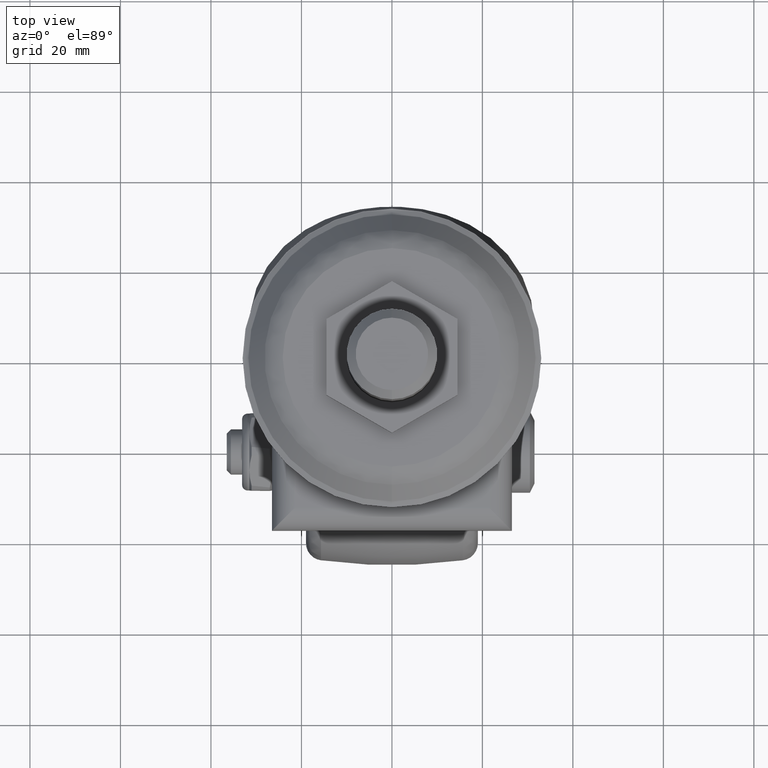
[diagram: clean part render]
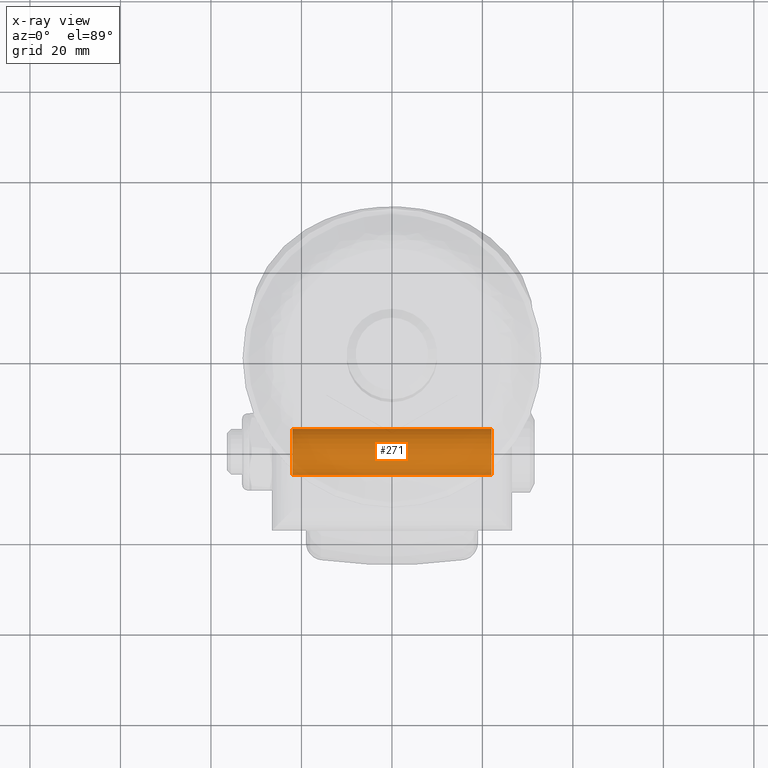
[diagram: x-ray — body ghosted, one internal face saturated and labeled with its STEP entity id]
A machine part, top view, then the same camera in x-ray: the body is ghosted and one INTERNAL B-rep face — a face not visible from any outside direction — is saturated and labeled: STEP entity #271.
In plain terms, the highlighted cylindrical surface (edge-blend (fillet) strip) has radius 5.1 mm, axis along (-1, 0, -0).
Its self-contained STEP definition (entity closure, byte-faithful):
#271=ADVANCED_FACE('',(#1898),#1897,.F.);
#1897=CYLINDRICAL_SURFACE('',#3601,5.10000000000E+00);
#1898=FACE_OUTER_BOUND('',#3602,.T.);
#3598=CARTESIAN_POINT('',(5.00000000000E+01,0.00000000000E+00,0.00000000000E+00));
#3599=DIRECTION('',(-1.00000000000E+00,-0.00000000000E+00,-0.00000000000E+00));
#3600=DIRECTION('',(0.00000000000E+00,0.00000000000E+00,1.00000000000E+00));
#3601=AXIS2_PLACEMENT_3D('',#3598,#3599,#3600);
#3602=EDGE_LOOP('',(#4392,#4393,#4394,#4395));
#4392=ORIENTED_EDGE('',*,*,#4802,.T.);
#4393=ORIENTED_EDGE('',*,*,#4803,.T.);
#4394=ORIENTED_EDGE('',*,*,#4804,.F.);
#4395=ORIENTED_EDGE('',*,*,#4805,.F.);
#4802=EDGE_CURVE('',#7200,#7199,#7219,.T.);
#4803=EDGE_CURVE('',#7199,#7225,#7226,.T.);
#4804=EDGE_CURVE('',#7232,#7225,#7233,.T.);
#4805=EDGE_CURVE('',#7200,#7232,#7239,.T.);
#7199=VERTEX_POINT('',#9175);
#7200=VERTEX_POINT('',#9176);
#7219=CIRCLE('',#9188,5.10000000000E+00);
#7225=VERTEX_POINT('',#9189);
#7226=(BOUNDED_CURVE() B_SPLINE_CURVE(1,(#9190,#9191),.UNSPECIFIED.,.F.,.F.) B_SPLINE_CURVE_WITH_KNOTS((2,2),(8.33333335810E-02,9.16666666255E-01),.UNSPECIFIED.) CURVE() GEOMETRIC_REPRESENTATION_ITEM() RATIONAL_B_SPLINE_CURVE((1.00000000000E+00,1.00000000000E+00)) REPRESENTATION_ITEM('') );
#7232=VERTEX_POINT('',#9192);
#7233=CIRCLE('',#9196,5.10000000000E+00);
#7239=(BOUNDED_CURVE() B_SPLINE_CURVE(1,(#9197,#9198),.UNSPECIFIED.,.F.,.F.) B_SPLINE_CURVE_WITH_KNOTS((2,2),(8.33333333333E-02,9.16666666667E-01),.UNSPECIFIED.) CURVE() GEOMETRIC_REPRESENTATION_ITEM() RATIONAL_B_SPLINE_CURVE((7.50000000000E-01,7.50000000000E-01)) REPRESENTATION_ITEM('') );
#9175=CARTESIAN_POINT('',(2.20000000000E+01,2.96059473233E-16,5.10000000000E+00));
#9176=CARTESIAN_POINT('',(2.20000000000E+01,0.00000000000E+00,-5.10000000000E+00));
#9185=CARTESIAN_POINT('',(2.20000000000E+01,0.00000000000E+00,0.00000000000E+00));
#9186=DIRECTION('',(1.00000000000E+00,0.00000000000E+00,0.00000000000E+00));
#9187=DIRECTION('',(0.00000000000E+00,-1.22460635382E-16,-1.00000000000E+00));
#9188=AXIS2_PLACEMENT_3D('',#9185,#9186,#9187);
#9189=CARTESIAN_POINT('',(-2.20000000000E+01,2.96059473233E-16,5.10000000000E+00));
#9190=CARTESIAN_POINT('',(2.19999999869E+01,0.00000000000E+00,5.10000000000E+00));
#9191=CARTESIAN_POINT('',(-2.19999999783E+01,0.00000000000E+00,5.10000000000E+00));
#9192=CARTESIAN_POINT('',(-2.20000000000E+01,0.00000000000E+00,-5.10000000000E+00));
#9193=CARTESIAN_POINT('',(-2.20000000000E+01,0.00000000000E+00,0.00000000000E+00));
#9194=DIRECTION('',(1.00000000000E+00,0.00000000000E+00,0.00000000000E+00));
#9195=DIRECTION('',(0.00000000000E+00,-1.22460635382E-16,-1.00000000000E+00));
#9196=AXIS2_PLACEMENT_3D('',#9193,#9194,#9195);
#9197=CARTESIAN_POINT('',(2.20000000000E+01,-2.96059473233E-16,-5.10000000000E+00));
#9198=CARTESIAN_POINT('',(-2.20000000000E+01,-2.96059473233E-16,-5.10000000000E+00));